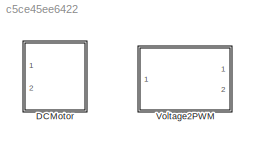
MODEL slx_c5ce45ee6422
KIND library
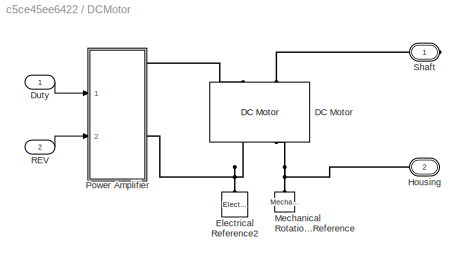
BLOCK [SubSystem]  DCMotor
  Ports = [2, 0, 0, 0, 0, 0, 2]
  RequestExecContextInheritance = off
BLOCK [Reference]  DCMotor/DC Motor  REF=elec_lib/Actuators & Drivers/Rotational Actuators/DC Motor
  ClassName = dc_motor
  ComponentPath = elec.actuators.rotational.dc_motor
  ComponentVariantNames = No thermal port, Show thermal port
  ComponentVariants = elec.actuators.rotational.dc_motor, elec.actuators.rotational.dc_motor_thermal
  J = 2
  J_unit = g*cm^2
  Ki = 6.876e-04
  Ki_unit = N*m/A
  Kv = 1/7000
  Kv_unit = V/rpm
  La = 0.001
  La_unit = H
  LogSimulationData = off
  P_rated = 10
  P_rated_unit = W
  Ports = [0, 0, 0, 0, 0, 2, 2]
  Ra = 3.9
  Ra_unit = Ohm
  SchemaVersion = 1
  SourceBlock = elec_lib/Actuators & Drivers/Rotational Actuators/DC Motor
  SourceFile = elec.actuators.rotational.dc_motor
  SourceType = DC Motor
  T_stall = 2.4e-04
  T_stall_unit = N*m
  Tmeas = 25
  Tmeas_unit = C
  V_i_noload = 1.5
  V_i_noload_unit = V
  V_rated = 4
  V_rated_unit = V
  alpha = 0.00393
  alpha_unit = 1/K
  emf_or_torque = 1
  emf_or_torque_unit = 1
  i_noload = 0
  i_noload_unit = A
  initial_temperature = 25
  initial_temperature_unit = C
  lam = 1e-06
  lam_param = 1
  lam_param_unit = 1
  lam_unit = N*m/(rad/s)
  parameterization = 3
  parameterization_unit = 1
  speed0 = 0
  speed0_unit = rpm
  thermal_mass = 100
  thermal_mass_unit = J/K
  w_max = 4*7000
  w_max_unit = rpm
  w_rated = 25000
  w_rated_unit = rpm
BLOCK [Inport]  DCMotor/Duty
  IconDisplay = Port number
BLOCK [Reference]  DCMotor/Electrical Reference2  REF=fl_lib/Electrical/Electrical Elements/Electrical Reference
  ClassName = reference_electrical
  ComponentPath = foundation.electrical.elements.reference
  ComponentVariantNames = reference
  ComponentVariants = foundation.electrical.elements.reference
  LogSimulationData = off
  Ports = [0, 0, 0, 0, 0, 1]
  SchemaVersion = 1
  SourceBlock = fl_lib/Electrical/Electrical Elements/Electrical Reference
  SourceFile = foundation.electrical.elements.reference
  SourceType = Electrical Reference
BLOCK [PMIOPort]  DCMotor/Housing
  Port = 2
  Side = Right
  Tag = PMCPort
BLOCK [Reference]  DCMotor/Mechanical Rotational Reference  REF=fl_lib/Mechanical/Rotational Elements/Mechanical
Rotational Reference
  ClassName = reference_rot
  ComponentPath = foundation.mechanical.rotational.reference
  ComponentVariantNames = reference
  ComponentVariants = foundation.mechanical.rotational.reference
  LogSimulationData = off
  Ports = [0, 0, 0, 0, 0, 1]
  SchemaVersion = 1
  SourceBlock = fl_lib/Mechanical/Rotational Elements/Mechanical\nRotational Reference
  SourceFile = foundation.mechanical.rotational.reference
  SourceType = Mechanical\nRotational Reference
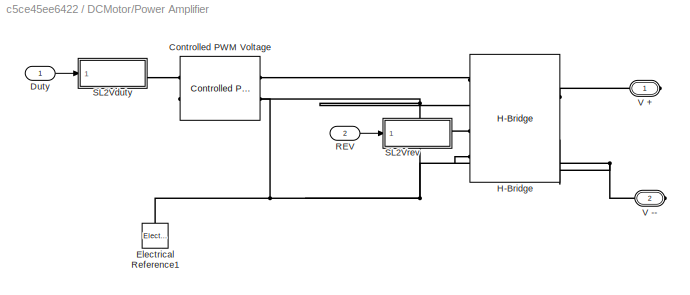
BLOCK [SubSystem]  DCMotor/Power Amplifier
  Ports = [2, 0, 0, 0, 0, 0, 2]
  RequestExecContextInheritance = off
BLOCK [Reference]  DCMotor/Power Amplifier/Controlled PWM Voltage  REF=elec_lib/Actuators & Drivers/Drivers/Controlled PWM
Voltage
  ClassName = controlled_pwm
  ComponentPath = elec.actuators.drivers.controlled_pwm
  ComponentVariantNames = controlled_pwm
  ComponentVariants = elec.actuators.drivers.controlled_pwm
  F = 4000
  F_unit = Hz
  LogSimulationData = off
  Ports = [0, 0, 0, 0, 0, 2, 2]
  SchemaVersion = 1
  SourceBlock = elec_lib/Actuators & Drivers/Drivers/Controlled PWM\nVoltage
  SourceFile = elec.actuators.drivers.controlled_pwm
  SourceType = Controlled PWM\nVoltage
  TD = 0
  TD_unit = s
  Vm = 5
  Vm_unit = V
  Vmax = 4
  Vmax_unit = V
  Vmin = 0
  Vmin_unit = V
  event_type = 1
  event_type_unit = 1
  pulse_width_offset = 0
  pulse_width_offset_unit = s
  pwm_or_av = 2
  pwm_or_av_unit = 1
  sample_time = 1e-6
  sample_time_unit = s
BLOCK [Inport]  DCMotor/Power Amplifier/Duty
  IconDisplay = Port number
BLOCK [Reference]  DCMotor/Power Amplifier/Electrical Reference1  REF=fl_lib/Electrical/Electrical Elements/Electrical Reference
  ClassName = reference_electrical
  ComponentPath = foundation.electrical.elements.reference
  ComponentVariantNames = reference
  ComponentVariants = foundation.electrical.elements.reference
  LogSimulationData = off
  Ports = [0, 0, 0, 0, 0, 1]
  SchemaVersion = 1
  SourceBlock = fl_lib/Electrical/Electrical Elements/Electrical Reference
  SourceFile = foundation.electrical.elements.reference
  SourceType = Electrical Reference
BLOCK [Reference]  DCMotor/Power Amplifier/H-Bridge  REF=elec_lib/Actuators & Drivers/Drivers/H-Bridge
  ClassName = h_bridge
  ComponentPath = elec.actuators.drivers.h_bridge
  ComponentVariantNames = h_bridge
  ComponentVariants = elec.actuators.drivers.h_bridge
  Don = 0.1
  Don_unit = Ohm
  F = 10
  F_unit = kHz
  Lload = 1e-5
  Lload_unit = H
  LogSimulationData = off
  Ports = [0, 0, 0, 0, 0, 4, 2]
  Rload = 10
  Rload_unit = Ohm
  Ron = 0.1
  Ron_unit = Ohm
  SchemaVersion = 1
  SourceBlock = elec_lib/Actuators & Drivers/Drivers/H-Bridge
  SourceFile = elec.actuators.drivers.h_bridge
  SourceType = H-Bridge
  Vbrake = 2.5
  Vbrake_unit = V
  Venable = 2.5
  Venable_unit = V
  Vm = 4
  Vm_unit = V
  Vmax = 5
  Vmax_unit = V
  Vreverse = 2.5
  Vreverse_unit = V
  discontinuous = 0
  discontinuous_unit = 1
  freewheeling_mode = 1
  freewheeling_mode_disc = 1
  freewheeling_mode_disc_unit = 1
  freewheeling_mode_unit = 1
  i_vec = [1, 2]
  i_vec_unit = A
  pwm_or_av = 2
  pwm_or_av_unit = 1
  vMatrix = [1, 2; 3, 4]
  vMatrix_unit = V
  w_vec = [1, 2]
  w_vec_unit = s
BLOCK [Inport]  DCMotor/Power Amplifier/REV
  IconDisplay = Port number
  Port = 2
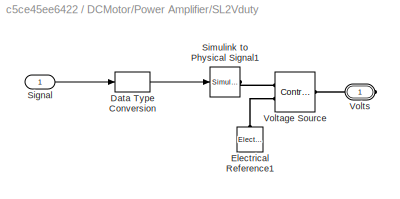
BLOCK [SubSystem]  DCMotor/Power Amplifier/SL2Vduty
  Ports = [1, 0, 0, 0, 0, 0, 1]
  RequestExecContextInheritance = off
BLOCK [DataTypeConversion]  DCMotor/Power Amplifier/SL2Vduty/Data Type Conversion
  OutDataTypeStr = double
  RndMeth = Floor
  SaturateOnIntegerOverflow = off
BLOCK [Reference]  DCMotor/Power Amplifier/SL2Vduty/Electrical Reference1  REF=fl_lib/Electrical/Electrical Elements/Electrical Reference
  ClassName = reference_electrical
  ComponentPath = foundation.electrical.elements.reference
  ComponentVariantNames = reference
  ComponentVariants = foundation.electrical.elements.reference
  LogSimulationData = off
  Ports = [0, 0, 0, 0, 0, 1]
  SchemaVersion = 1
  SourceBlock = fl_lib/Electrical/Electrical Elements/Electrical Reference
  SourceFile = foundation.electrical.elements.reference
  SourceType = Electrical Reference
BLOCK [Inport]  DCMotor/Power Amplifier/SL2Vduty/Signal
  IconDisplay = Port number
BLOCK [Reference]  DCMotor/Power Amplifier/SL2Vduty/Simulink to Physical Signal1  REF=nesl_utility/Simulink-PS
Converter
  AffineConversion = off
  Frequencies = []
  InputFilterTimeConstant = .001
  InputFiltering = off
  LeftPortType = input
  NoiseDistribution = none
  NoiseParameters = []
  PhysicalDomain = network_engine_domain
  Ports = [1, 0, 0, 0, 0, 0, 1]
  PseudoPeriodic = off
  RightPortType = output
  SimscapeFilterOrder = 1
  SourceBlock = nesl_utility/Simulink-PS\nConverter
  SourceType = Simulink-PS\nConverter
  SubClassName = ps_input
  UdotUserProvided = 0
  Unit = V
BLOCK [Reference]  DCMotor/Power Amplifier/SL2Vduty/Voltage Source  REF=fl_lib/Electrical/Electrical Sources/Controlled Voltage
Source
  ClassName = controlled_voltage_source
  ComponentPath = foundation.electrical.sources.controlled_voltage
  ComponentVariantNames = controlled_voltage
  ComponentVariants = foundation.electrical.sources.controlled_voltage
  LogSimulationData = off
  Ports = [0, 0, 0, 0, 0, 1, 2]
  SchemaVersion = 1
  SourceBlock = fl_lib/Electrical/Electrical Sources/Controlled Voltage\nSource
  SourceFile = foundation.electrical.sources.controlled_voltage
  SourceType = Controlled Voltage\nSource
BLOCK [PMIOPort]  DCMotor/Power Amplifier/SL2Vduty/Volts
  Port = 1
  Side = Right
  Tag = PMCPort
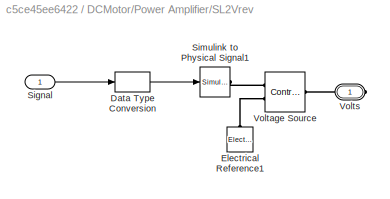
BLOCK [SubSystem]  DCMotor/Power Amplifier/SL2Vrev
  Ports = [1, 0, 0, 0, 0, 0, 1]
  RequestExecContextInheritance = off
BLOCK [DataTypeConversion]  DCMotor/Power Amplifier/SL2Vrev/Data Type Conversion
  OutDataTypeStr = double
  RndMeth = Floor
  SaturateOnIntegerOverflow = off
BLOCK [Reference]  DCMotor/Power Amplifier/SL2Vrev/Electrical Reference1  REF=fl_lib/Electrical/Electrical Elements/Electrical Reference
  ClassName = reference_electrical
  ComponentPath = foundation.electrical.elements.reference
  ComponentVariantNames = reference
  ComponentVariants = foundation.electrical.elements.reference
  LogSimulationData = off
  Ports = [0, 0, 0, 0, 0, 1]
  SchemaVersion = 1
  SourceBlock = fl_lib/Electrical/Electrical Elements/Electrical Reference
  SourceFile = foundation.electrical.elements.reference
  SourceType = Electrical Reference
BLOCK [Inport]  DCMotor/Power Amplifier/SL2Vrev/Signal
  IconDisplay = Port number
BLOCK [Reference]  DCMotor/Power Amplifier/SL2Vrev/Simulink to Physical Signal1  REF=nesl_utility/Simulink-PS
Converter
  AffineConversion = off
  Frequencies = []
  InputFilterTimeConstant = .001
  InputFiltering = off
  LeftPortType = input
  NoiseDistribution = none
  NoiseParameters = []
  PhysicalDomain = network_engine_domain
  Ports = [1, 0, 0, 0, 0, 0, 1]
  PseudoPeriodic = off
  RightPortType = output
  SimscapeFilterOrder = 1
  SourceBlock = nesl_utility/Simulink-PS\nConverter
  SourceType = Simulink-PS\nConverter
  SubClassName = ps_input
  UdotUserProvided = 0
  Unit = V
BLOCK [Reference]  DCMotor/Power Amplifier/SL2Vrev/Voltage Source  REF=fl_lib/Electrical/Electrical Sources/Controlled Voltage
Source
  ClassName = controlled_voltage_source
  ComponentPath = foundation.electrical.sources.controlled_voltage
  ComponentVariantNames = controlled_voltage
  ComponentVariants = foundation.electrical.sources.controlled_voltage
  LogSimulationData = off
  Ports = [0, 0, 0, 0, 0, 1, 2]
  SchemaVersion = 1
  SourceBlock = fl_lib/Electrical/Electrical Sources/Controlled Voltage\nSource
  SourceFile = foundation.electrical.sources.controlled_voltage
  SourceType = Controlled Voltage\nSource
BLOCK [PMIOPort]  DCMotor/Power Amplifier/SL2Vrev/Volts
  Port = 1
  Side = Right
  Tag = PMCPort
BLOCK [PMIOPort]  DCMotor/Power Amplifier/V +
  Port = 1
  Side = Right
  Tag = PMCPort
BLOCK [PMIOPort]  DCMotor/Power Amplifier/V --
  Port = 2
  Side = Right
  Tag = PMCPort
BLOCK [Inport]  DCMotor/REV
  IconDisplay = Port number
  Port = 2
BLOCK [PMIOPort]  DCMotor/Shaft
  Port = 1
  Side = Right
  Tag = PMCPort
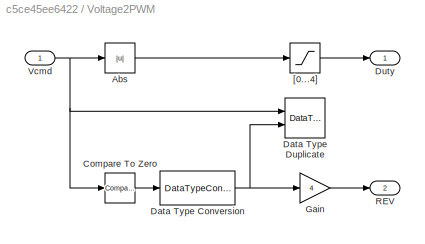
BLOCK [SubSystem] Voltage2PWM
  Ports = [1, 2]
  RequestExecContextInheritance = off
BLOCK [Abs] Voltage2PWM/Abs
  SaturateOnIntegerOverflow = off
BLOCK [Reference] Voltage2PWM/Compare To Zero  REF=simulink/Logic and Bit
Operations/Compare
To Zero
  OutDataTypeStr = uint8
  Ports = [1, 1]
  SourceBlock = simulink/Logic and Bit\nOperations/Compare\nTo Zero
  SourceType = Compare To Zero
  ZeroCross = on
  relop = >
BLOCK [DataTypeConversion] Voltage2PWM/Data Type Conversion
  RndMeth = Floor
  SaturateOnIntegerOverflow = off
BLOCK [DataTypeDuplicate] Voltage2PWM/Data Type Duplicate
  Ports = [2]
BLOCK [Outport] Voltage2PWM/Duty
  IconDisplay = Port number
BLOCK [Gain] Voltage2PWM/Gain
  Gain = 4
  OutDataTypeStr = Inherit: Inherit via internal rule
  ParamDataTypeStr = Inherit: Inherit via internal rule
  SaturateOnIntegerOverflow = off
BLOCK [Outport] Voltage2PWM/REV
  IconDisplay = Port number
  Port = 2
BLOCK [Inport] Voltage2PWM/Vcmd
  IconDisplay = Port number
BLOCK [Saturate] Voltage2PWM/[0...4]
  InputPortMap = u0
  LowerLimit = 0
  Ports = [1, 1]
  UpperLimit = 4
LINE  DCMotor/Duty:1 ->  DCMotor/Power Amplifier:1
LINE  DCMotor/Power Amplifier/Duty:1 ->  DCMotor/Power Amplifier/SL2Vduty:1
LINE  DCMotor/Power Amplifier/REV:1 ->  DCMotor/Power Amplifier/SL2Vrev:1
LINE  DCMotor/Power Amplifier/SL2Vduty/Data Type Conversion:1 ->  DCMotor/Power Amplifier/SL2Vduty/Simulink to Physical Signal1:1
LINE  DCMotor/Power Amplifier/SL2Vduty/Signal:1 ->  DCMotor/Power Amplifier/SL2Vduty/Data Type Conversion:1
LINE  DCMotor/Power Amplifier/SL2Vrev/Data Type Conversion:1 ->  DCMotor/Power Amplifier/SL2Vrev/Simulink to Physical Signal1:1
LINE  DCMotor/Power Amplifier/SL2Vrev/Signal:1 ->  DCMotor/Power Amplifier/SL2Vrev/Data Type Conversion:1
LINE  DCMotor/REV:1 ->  DCMotor/Power Amplifier:2
LINE Voltage2PWM/Abs:1 -> Voltage2PWM/[0...4]:1
LINE Voltage2PWM/Compare To Zero:1 -> Voltage2PWM/Data Type Conversion:1
NET Voltage2PWM/Data Type Conversion:1 -> Voltage2PWM/Data Type Duplicate:2, Voltage2PWM/Gain:1
LINE Voltage2PWM/Gain:1 -> Voltage2PWM/REV:1
NET Voltage2PWM/Vcmd:1 -> Voltage2PWM/Abs:1, Voltage2PWM/Compare To Zero:1, Voltage2PWM/Data Type Duplicate:1
LINE Voltage2PWM/[0...4]:1 -> Voltage2PWM/Duty:1
PLINE  DCMotor/DC Motor:LConn1 --  DCMotor/Power Amplifier:RConn1
PLINE  DCMotor/DC Motor:LConn2 --  DCMotor/Shaft:RConn1
PNET net1:  DCMotor/DC Motor:RConn1 --  DCMotor/Electrical Reference2:LConn1 --  DCMotor/Power Amplifier:RConn2
PNET net2:  DCMotor/DC Motor:RConn2 --  DCMotor/Housing:RConn1 --  DCMotor/Mechanical Rotational Reference:LConn1
PLINE  DCMotor/Power Amplifier/Controlled PWM Voltage:LConn1 --  DCMotor/Power Amplifier/SL2Vduty:RConn1
PNET net3:  DCMotor/Power Amplifier/Controlled PWM Voltage:LConn2 --  DCMotor/Power Amplifier/Controlled PWM Voltage:RConn2 --  DCMotor/Power Amplifier/Electrical Reference1:LConn1 --  DCMotor/Power Amplifier/H-Bridge:LConn2 --  DCMotor/Power Amplifier/H-Bridge:LConn4 --  DCMotor/Power Amplifier/H-Bridge:RConn2 --  DCMotor/Power Amplifier/V --:RConn1
PLINE  DCMotor/Power Amplifier/Controlled PWM Voltage:RConn1 --  DCMotor/Power Amplifier/H-Bridge:LConn1
PLINE  DCMotor/Power Amplifier/H-Bridge:LConn3 --  DCMotor/Power Amplifier/SL2Vrev:RConn1
PLINE  DCMotor/Power Amplifier/H-Bridge:RConn1 --  DCMotor/Power Amplifier/V +:RConn1
PLINE  DCMotor/Power Amplifier/SL2Vduty/Electrical Reference1:LConn1 --  DCMotor/Power Amplifier/SL2Vduty/Voltage Source:RConn2
PLINE  DCMotor/Power Amplifier/SL2Vduty/Simulink to Physical Signal1:RConn1 --  DCMotor/Power Amplifier/SL2Vduty/Voltage Source:RConn1
PLINE  DCMotor/Power Amplifier/SL2Vduty/Voltage Source:LConn1 --  DCMotor/Power Amplifier/SL2Vduty/Volts:RConn1
PLINE  DCMotor/Power Amplifier/SL2Vrev/Electrical Reference1:LConn1 --  DCMotor/Power Amplifier/SL2Vrev/Voltage Source:RConn2
PLINE  DCMotor/Power Amplifier/SL2Vrev/Simulink to Physical Signal1:RConn1 --  DCMotor/Power Amplifier/SL2Vrev/Voltage Source:RConn1
PLINE  DCMotor/Power Amplifier/SL2Vrev/Voltage Source:LConn1 --  DCMotor/Power Amplifier/SL2Vrev/Volts:RConn1
note: NET lines group one-source signal fan-out (src -> all destinations, sorted); 1:1 wires keep LINE; PNET lines group multi-terminal physical nets as a canonical sorted terminal list (undirected conserving connections); 2-terminal nets keep the pairwise PLINE form
